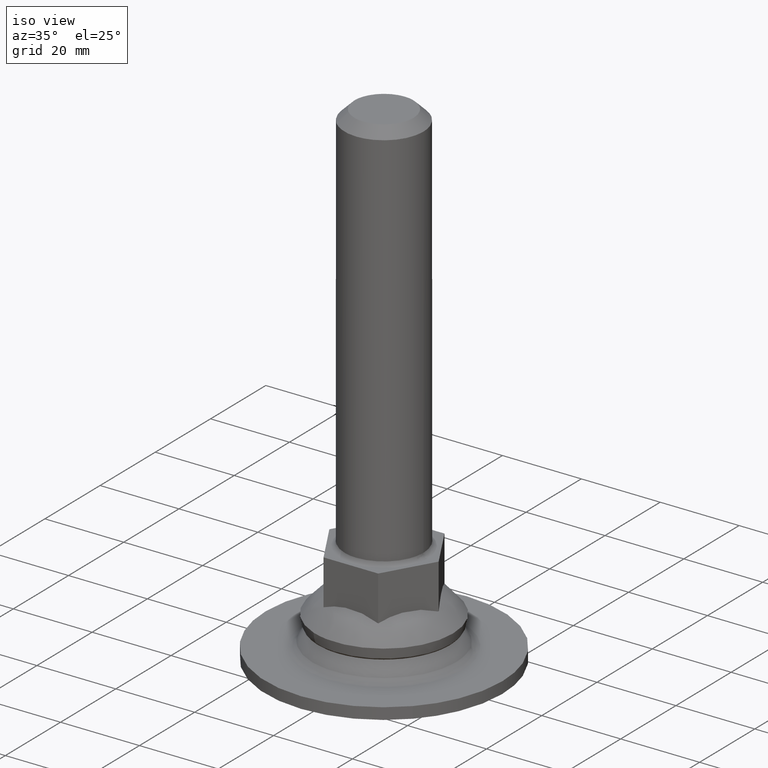
[diagram: clean part render]
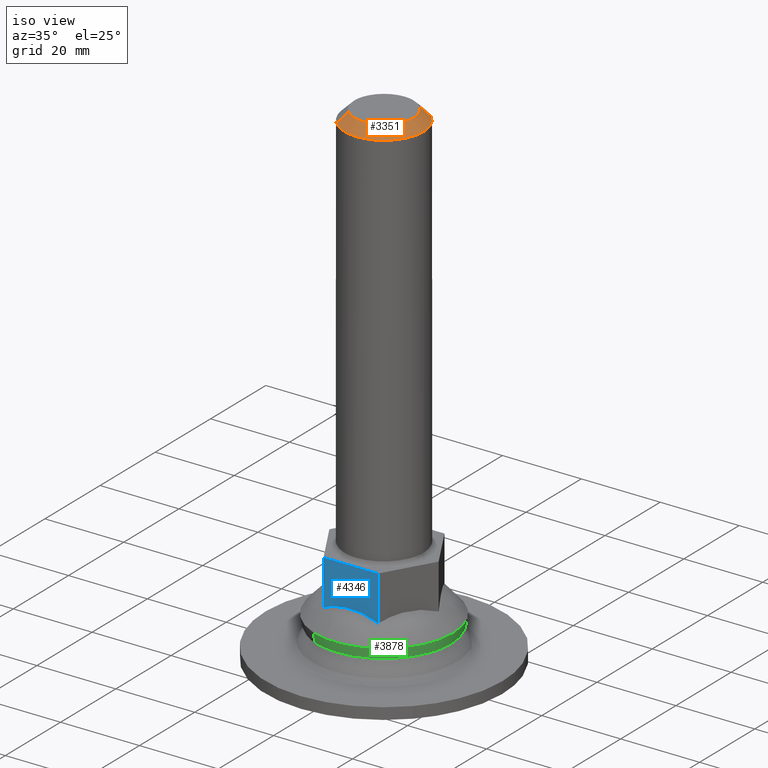
[diagram: same view with three faces highlighted in distinct colors, each labeled with its STEP entity id]
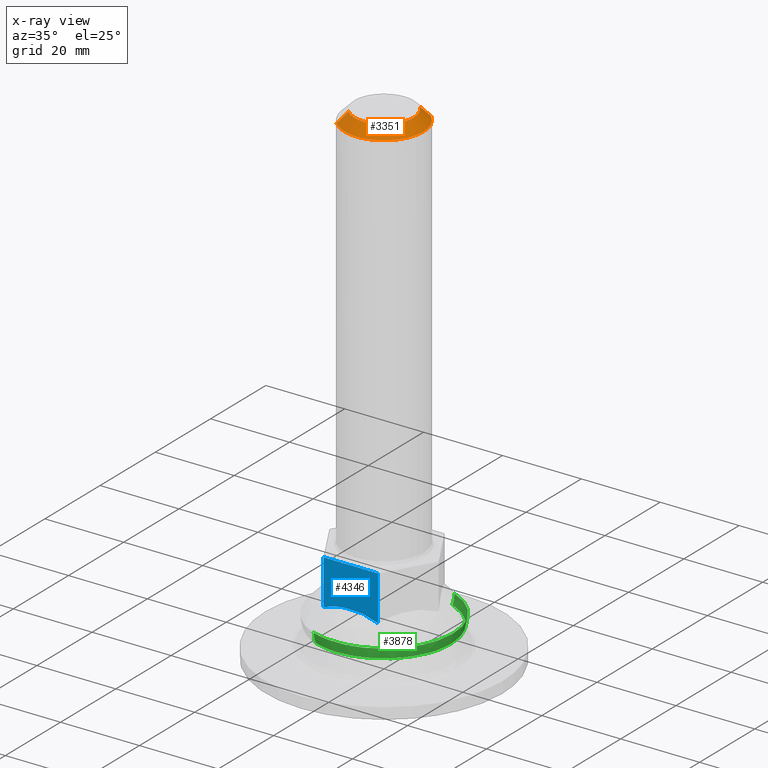
[diagram: x-ray of the same camera — body ghosted, the three highlighted faces saturated]
A machine part, iso view with three faces highlighted in distinct colors.
The next image is the same camera in x-ray (body ghosted, the three faces saturated) — at least one of them is partly hidden behind the body in this view.
Their STEP definitions:

[orange] entity #3351 — the highlighted face is a freeform B-spline surface patch.
#2986=CARTESIAN_POINT('',(-5.349378028334636,-5.256819147815845,126.000000159047300));
#2987=VERTEX_POINT('',#2986);
#2997=CARTESIAN_POINT('',(0.000001272572000,-7.499999999999892,126.0));
#2998=VERTEX_POINT('',#2997);
#2999=CARTESIAN_POINT('',(-5.349378028334636,-5.256819147815845,126.000000159047300));
#3000=CARTESIAN_POINT('',(-4.979804750623506,-5.633003415956612,126.000000148059100));
#3001=CARTESIAN_POINT('',(-4.136797157534064,-6.326771806794838,126.000000122995100));
#3002=CARTESIAN_POINT('',(-2.829826964678806,-6.993169783422770,126.000000084136200));
#3003=CARTESIAN_POINT('',(-1.426909774086751,-7.404691263051183,126.000000042424800));
#3004=CARTESIAN_POINT('',(-0.527356259449175,-7.500093194081496,126.000000015679210));
#3005=CARTESIAN_POINT('',(0.000001272572000,-7.499999999999892,126.0));
#3006=B_SPLINE_CURVE_WITH_KNOTS('',3,(#2999,#3000,#3001,#3002,#3003,#3004,#3005),.UNSPECIFIED.,.F.,.U.,(4,1,1,1,4),(0.000000032131767,1.582056928520330,3.257158372591816,4.373918465117593,5.955975361528592),.UNSPECIFIED.);
#3007=EDGE_CURVE('',#2987,#2998,#3006,.T.);
#3009=CARTESIAN_POINT('',(7.500000000000000,0.0,126.0));
#3010=VERTEX_POINT('',#3009);
#3011=CARTESIAN_POINT('',(0.000001272572000,-7.499999999999892,126.0));
#3012=CARTESIAN_POINT('',(0.797729298359782,-7.500483527849852,125.999999999999800));
#3013=CARTESIAN_POINT('',(2.178020435371256,-7.277554710305593,126.000000000000400));
#3014=CARTESIAN_POINT('',(3.802210070045309,-6.521473032689415,126.0));
#3015=CARTESIAN_POINT('',(4.944471772848146,-5.685015623023675,125.999999999999800));
#3016=CARTESIAN_POINT('',(5.761647019126409,-4.847514215843386,126.000000000001710));
#3017=CARTESIAN_POINT('',(6.511796082267917,-3.796227125966464,125.999999999998710));
#3018=CARTESIAN_POINT('',(7.059547378658469,-2.656286205104878,125.999999999999010));
#3019=CARTESIAN_POINT('',(7.420682475965768,-1.319197959938213,126.000000000003600));
#3020=CARTESIAN_POINT('',(7.500041010134382,-0.460193130097498,125.999999999997100));
#3021=CARTESIAN_POINT('',(7.500000000000000,0.0,126.0));
#3022=B_SPLINE_CURVE_WITH_KNOTS('',3,(#3011,#3012,#3013,#3014,#3015,#3016,#3017,#3018,#3019,#3020,#3021),.UNSPECIFIED.,.F.,.U.,(4,1,1,1,1,1,1,1,4),(0.000000121721241,2.393023865520807,4.141784922664193,5.338327191261848,6.626834193411376,7.639267183853509,9.203948523191802,10.400467048331979,11.781045654322019),.UNSPECIFIED.);
#3023=EDGE_CURVE('',#2998,#3010,#3022,.T.);
#3025=CARTESIAN_POINT('',(5.349378028334600,5.256819147815811,126.000000159047300));
#3026=VERTEX_POINT('',#3025);
#3027=CARTESIAN_POINT('',(7.500000000000000,0.0,126.0));
#3028=CARTESIAN_POINT('',(7.500007949914528,0.424736675308778,126.000000012850710));
#3029=CARTESIAN_POINT('',(7.409694925228116,1.486625569024249,126.000000044978410));
#3030=CARTESIAN_POINT('',(6.979654364455890,2.890301166358734,126.000000087447300));
#3031=CARTESIAN_POINT('',(6.245107952524767,4.222974976325006,126.000000127768200));
#3032=CARTESIAN_POINT('',(5.689660118294407,4.910634540409121,126.000000148573090));
#3033=CARTESIAN_POINT('',(5.349378028334600,5.256819147815811,126.000000159047300));
#3034=B_SPLINE_CURVE_WITH_KNOTS('',3,(#3027,#3028,#3029,#3030,#3031,#3032,#3033),.UNSPECIFIED.,.F.,.U.,(4,1,1,1,4),(0.000000033361732,1.274233847442855,3.185574834746614,4.368803959734233,5.825071935171669),.UNSPECIFIED.);
#3035=EDGE_CURVE('',#3010,#3026,#3034,.T.);
#3215=CARTESIAN_POINT('',(-7.132504638381588,-7.009092787297585,123.499999931375300));
#3216=VERTEX_POINT('',#3215);
#3224=CARTESIAN_POINT('',(-5.349378028334636,-5.256819147815845,126.000000159047300));
#3225=CARTESIAN_POINT('',(-7.132504638381588,-7.009092787297585,123.499999931375300));
#3226=QUASI_UNIFORM_CURVE('',1,(#3224,#3225),.UNSPECIFIED.,.F.,.U.);
#3227=EDGE_CURVE('',#2987,#3216,#3226,.T.);
#3232=CARTESIAN_POINT('',(7.132504638381590,7.009092787297587,123.499999931375300));
#3233=VERTEX_POINT('',#3232);
#3234=CARTESIAN_POINT('',(5.349378028334600,5.256819147815811,126.000000159047300));
#3235=CARTESIAN_POINT('',(7.132504638381590,7.009092787297587,123.499999931375300));
#3236=QUASI_UNIFORM_CURVE('',1,(#3234,#3235),.UNSPECIFIED.,.F.,.U.);
#3237=EDGE_CURVE('',#3026,#3233,#3236,.T.);
#3281=CARTESIAN_POINT('',(5.304800215584212,5.213012653230128,126.062500000000000));
#3282=CARTESIAN_POINT('',(10.517812868814339,-0.091787562354084,126.062500000000010));
#3283=CARTESIAN_POINT('',(5.213012653230128,-5.304800215584212,126.062500000000000));
#3284=CARTESIAN_POINT('',(-0.091787562354084,-10.517812868814339,126.062500000000010));
#3285=CARTESIAN_POINT('',(-5.304800215584212,-5.213012653230128,126.062500000000000));
#3286=CARTESIAN_POINT('',(7.178197098440793,7.053994642742755,123.435937499999990));
#3287=CARTESIAN_POINT('',(14.232191741183556,-0.124202455698038,123.435937499999990));
#3288=CARTESIAN_POINT('',(7.053994642742755,-7.178197098440793,123.435937499999990));
#3289=CARTESIAN_POINT('',(-0.124202455698038,-14.232191741183556,123.435937499999990));
#3290=CARTESIAN_POINT('',(-7.178197098440793,-7.053994642742755,123.435937499999990));
#3298=(BOUNDED_SURFACE()B_SPLINE_SURFACE(2,1,((#3281,#3286),(#3282,#3287),(#3283,#3288),(#3284,#3289),(#3285,#3290)),.UNSPECIFIED.,.F.,.F.,.U.)B_SPLINE_SURFACE_WITH_KNOTS((3,2,3),(2,2),(0.0,16.674684720281999,33.349369440563990),(0.0,3.714520309920652),.UNSPECIFIED.)GEOMETRIC_REPRESENTATION_ITEM()RATIONAL_B_SPLINE_SURFACE(((1.0,1.0),(0.707106781186548,0.707106781186548),(1.0,1.0),(0.707106781186548,0.707106781186548),(1.0,1.0)))REPRESENTATION_ITEM('')SURFACE());
#3299=CARTESIAN_POINT('',(-0.000001116382157,-9.999999999999940,123.500000000000000));
#3300=VERTEX_POINT('',#3299);
#3301=CARTESIAN_POINT('',(-0.000001116382157,-9.999999999999940,123.500000000000000));
#3302=CARTESIAN_POINT('',(-1.034104233955298,-10.000587130528340,123.499999990050600));
#3303=CARTESIAN_POINT('',(-2.564083134001908,-9.760422532306476,123.499999975329900));
#3304=CARTESIAN_POINT('',(-4.370948342124586,-9.028787908842698,123.499999957945510));
#3305=CARTESIAN_POINT('',(-5.772597154616108,-8.224178763481008,123.499999944459200));
#3306=CARTESIAN_POINT('',(-6.639743468771343,-7.510685223549811,123.499999936117110));
#3307=CARTESIAN_POINT('',(-7.132504638381588,-7.009092787297585,123.499999931375300));
#3308=B_SPLINE_CURVE_WITH_KNOTS('',3,(#3301,#3302,#3303,#3304,#3305,#3306,#3307),.UNSPECIFIED.,.F.,.U.,(4,1,1,1,4),(0.000000025246525,3.102074031920558,4.591049882436860,5.831889011853403,7.941298003192223),.UNSPECIFIED.);
#3309=EDGE_CURVE('',#3300,#3216,#3308,.T.);
#3310=ORIENTED_EDGE('',*,*,#3309,.F.);
#3311=CARTESIAN_POINT('',(10.0,0.0,123.500000000000000));
#3312=VERTEX_POINT('',#3311);
#3313=CARTESIAN_POINT('',(10.0,0.0,123.500000000000000));
#3314=CARTESIAN_POINT('',(10.000121688835470,-0.777220201414514,123.500000000000000));
#3315=CARTESIAN_POINT('',(9.813167069962011,-2.372532971525058,123.500000000000200));
#3316=CARTESIAN_POINT('',(9.095197127377910,-4.304134899934490,123.499999999999900));
#3317=CARTESIAN_POINT('',(8.115556578473184,-5.915757752217230,123.500000000000000));
#3318=CARTESIAN_POINT('',(7.076595985422238,-7.135286468560522,123.499999999999700));
#3319=CARTESIAN_POINT('',(5.751020852721978,-8.236842801259432,123.500000000000100));
#3320=CARTESIAN_POINT('',(4.367573590757957,-9.043095766470202,123.500000000000000));
#3321=CARTESIAN_POINT('',(2.454149533465511,-9.781333823020106,123.500000000000000));
#3322=CARTESIAN_POINT('',(0.981805313624165,-10.000435081316080,123.500000000000100));
#3323=CARTESIAN_POINT('',(-0.000001116382157,-9.999999999999940,123.500000000000000));
#3324=B_SPLINE_CURVE_WITH_KNOTS('',3,(#3313,#3314,#3315,#3316,#3317,#3318,#3319,#3320,#3321,#3322,#3323),.UNSPECIFIED.,.F.,.U.,(4,1,1,1,1,1,1,1,4),(0.000000080921248,2.331662886608523,4.786059589965058,6.135962979370811,7.976727525495474,9.572094227242719,11.290163700589920,12.762812535857501,15.708062457968341),.UNSPECIFIED.);
#3325=EDGE_CURVE('',#3312,#3300,#3324,.T.);
#3326=ORIENTED_EDGE('',*,*,#3325,.F.);
#3327=CARTESIAN_POINT('',(7.220018122038374,6.918912045566668,123.500000000000000));
#3328=VERTEX_POINT('',#3327);
#3329=CARTESIAN_POINT('',(7.220018122038374,6.918912045566668,123.500000000000000));
#3330=CARTESIAN_POINT('',(7.853618404025306,6.258250960764366,123.500000000000000));
#3331=CARTESIAN_POINT('',(8.724974536482915,5.054086833258520,123.500000000000200));
#3332=CARTESIAN_POINT('',(9.466086299666623,3.329571701695731,123.500000000000000));
#3333=CARTESIAN_POINT('',(9.890505905537443,1.751035976046665,123.500000000000100));
#3334=CARTESIAN_POINT('',(10.000097002277110,0.676562366675440,123.499999999999800));
#3335=CARTESIAN_POINT('',(10.0,0.0,123.500000000000000));
#3336=B_SPLINE_CURVE_WITH_KNOTS('',3,(#3329,#3330,#3331,#3332,#3333,#3334,#3335),.UNSPECIFIED.,.F.,.U.,(4,1,1,1,4),(0.000000025336252,2.746028996677348,4.417504244758540,5.611429784323361,7.641096888134920),.UNSPECIFIED.);
#3337=EDGE_CURVE('',#3328,#3312,#3336,.T.);
#3338=ORIENTED_EDGE('',*,*,#3337,.F.);
#3339=CARTESIAN_POINT('',(7.132504638381590,7.009092787297587,123.499999931375300));
#3340=CARTESIAN_POINT('',(7.220018122038374,6.918912045566668,123.500000000000000));
#3341=QUASI_UNIFORM_CURVE('',1,(#3339,#3340),.UNSPECIFIED.,.F.,.U.);
#3342=EDGE_CURVE('',#3233,#3328,#3341,.T.);
#3343=ORIENTED_EDGE('',*,*,#3342,.F.);
#3344=ORIENTED_EDGE('',*,*,#3237,.F.);
#3345=ORIENTED_EDGE('',*,*,#3035,.F.);
#3346=ORIENTED_EDGE('',*,*,#3023,.F.);
#3347=ORIENTED_EDGE('',*,*,#3007,.F.);
#3348=ORIENTED_EDGE('',*,*,#3227,.T.);
#3349=EDGE_LOOP('',(#3310,#3326,#3338,#3343,#3344,#3345,#3346,#3347,#3348));
#3350=FACE_OUTER_BOUND('',#3349,.T.);
#3351=ADVANCED_FACE('',(#3350),#3298,.T.);

[blue] entity #4346 — the highlighted face is a freeform B-spline surface patch.
#4184=CARTESIAN_POINT('',(6.928203230275470,-12.0,14.570158679988181));
#4185=VERTEX_POINT('',#4184);
#4196=CARTESIAN_POINT('',(-6.928203230275470,-12.0,14.570158679988181));
#4197=VERTEX_POINT('',#4196);
#4198=CARTESIAN_POINT('',(6.928203230275470,-12.0,14.570158679988181));
#4199=CARTESIAN_POINT('',(6.076492331510504,-12.000000000000020,14.937379455673170));
#4200=CARTESIAN_POINT('',(4.067848648348435,-11.999999999999950,15.619954177666580));
#4201=CARTESIAN_POINT('',(1.448377716827622,-12.000000000000041,16.005901902151809));
#4202=CARTESIAN_POINT('',(-1.336955598195046,-12.0,16.005856240024990));
#4203=CARTESIAN_POINT('',(-3.957587912257986,-12.0,15.645248327095960));
#4204=CARTESIAN_POINT('',(-5.974299768641528,-12.000000000000011,14.981502659978499));
#4205=CARTESIAN_POINT('',(-6.928203230275470,-12.0,14.570158679988181));
#4206=B_SPLINE_CURVE_WITH_KNOTS('',3,(#4198,#4199,#4200,#4201,#4202,#4203,#4204,#4205),.UNSPECIFIED.,.F.,.U.,(4,1,1,1,1,4),(0.000000022260078,2.782531710368431,6.344190845837394,7.902401627566672,11.130152316390120,14.246592451143650),.UNSPECIFIED.);
#4207=EDGE_CURVE('',#4185,#4197,#4206,.T.);
#4258=CARTESIAN_POINT('',(-6.928203230275470,-12.0,26.0));
#4259=VERTEX_POINT('',#4258);
#4265=CARTESIAN_POINT('',(6.928203230275470,-12.0,26.0));
#4266=VERTEX_POINT('',#4265);
#4267=CARTESIAN_POINT('',(-6.928203230275470,-12.0,26.0));
#4268=CARTESIAN_POINT('',(6.928203230275470,-12.0,26.0));
#4269=QUASI_UNIFORM_CURVE('',1,(#4267,#4268),.UNSPECIFIED.,.F.,.U.);
#4270=EDGE_CURVE('',#4259,#4266,#4269,.T.);
#4323=CARTESIAN_POINT('',(6.928203230275470,-12.0,26.0));
#4324=CARTESIAN_POINT('',(6.928203230275470,-12.0,14.570158679988181));
#4325=QUASI_UNIFORM_CURVE('',1,(#4323,#4324),.UNSPECIFIED.,.F.,.U.);
#4326=EDGE_CURVE('',#4266,#4185,#4325,.T.);
#4331=CARTESIAN_POINT('',(-7.620330706123587,-12.0,13.999238128206841));
#4332=CARTESIAN_POINT('',(-7.620330706123587,-12.0,26.570920858353581));
#4333=CARTESIAN_POINT('',(7.620331077781369,-12.0,13.999238128206841));
#4334=CARTESIAN_POINT('',(7.620331077781369,-12.0,26.570920858353581));
#4335=B_SPLINE_SURFACE_WITH_KNOTS('',1,1,((#4331,#4333),(#4332,#4334)),.UNSPECIFIED.,.F.,.F.,.U.,(2,2),(2,2),(0.0,12.571682730146740),(0.0,15.240661783904960),.UNSPECIFIED.);
#4336=ORIENTED_EDGE('',*,*,#4207,.F.);
#4337=ORIENTED_EDGE('',*,*,#4326,.F.);
#4338=ORIENTED_EDGE('',*,*,#4270,.F.);
#4339=CARTESIAN_POINT('',(-6.928203230275470,-12.0,26.0));
#4340=CARTESIAN_POINT('',(-6.928203230275470,-12.0,14.570158679988181));
#4341=QUASI_UNIFORM_CURVE('',1,(#4339,#4340),.UNSPECIFIED.,.F.,.U.);
#4342=EDGE_CURVE('',#4259,#4197,#4341,.T.);
#4343=ORIENTED_EDGE('',*,*,#4342,.T.);
#4344=EDGE_LOOP('',(#4336,#4337,#4338,#4343));
#4345=FACE_OUTER_BOUND('',#4344,.T.);
#4346=ADVANCED_FACE('',(#4345),#4335,.F.);

[green] entity #3878 — the highlighted face is a freeform B-spline surface patch.
#3645=CARTESIAN_POINT('',(15.806200260110710,-6.258117395644629,8.000000000152721));
#3646=VERTEX_POINT('',#3645);
#3647=CARTESIAN_POINT('',(-6.258117398544525,-15.806200259649451,8.000000001560522));
#3648=VERTEX_POINT('',#3647);
#3649=CARTESIAN_POINT('',(15.806200260110710,-6.258117395644629,8.000000000152721));
#3650=CARTESIAN_POINT('',(15.422308068260801,-7.228012843863470,8.000000000203572));
#3651=CARTESIAN_POINT('',(14.522476650929960,-9.003279125394009,8.000000000306454));
#3652=CARTESIAN_POINT('',(12.574729673280070,-11.598449674391951,8.000000000488205));
#3653=CARTESIAN_POINT('',(10.418082125722430,-13.542550557174430,8.000000000658941));
#3654=CARTESIAN_POINT('',(8.088914596375675,-15.008391297333009,8.000000000822597));
#3655=CARTESIAN_POINT('',(5.649218627626357,-16.127172977897491,8.000000000980306));
#3656=CARTESIAN_POINT('',(2.909087191563699,-16.841485170642230,8.000000001139695));
#3657=CARTESIAN_POINT('',(0.267194812662673,-17.045283393443079,8.000000001277423));
#3658=CARTESIAN_POINT('',(-2.723639630162412,-16.890470262546170,8.000000001420780));
#3659=CARTESIAN_POINT('',(-4.835794213965853,-16.369902699664781,8.000000001508413));
#3660=CARTESIAN_POINT('',(-6.258117398544525,-15.806200259649451,8.000000001560522));
#3661=B_SPLINE_CURVE_WITH_KNOTS('',3,(#3649,#3650,#3651,#3652,#3653,#3654,#3655,#3656,#3657,#3658,#3659,#3660),.UNSPECIFIED.,.F.,.U.,(4,1,1,1,1,1,1,1,1,4),(0.000000079767922,3.129299696434863,5.945717609814597,9.700932569937539,11.787164259022481,14.186231746349719,17.732838676941750,20.236306968040509,22.113912099997808,26.703579447800021),.UNSPECIFIED.);
#3662=EDGE_CURVE('',#3646,#3648,#3661,.T.);
#3741=CARTESIAN_POINT('',(17.0,0.0,8.0));
#3742=VERTEX_POINT('',#3741);
#3743=CARTESIAN_POINT('',(17.0,0.0,8.0));
#3744=CARTESIAN_POINT('',(17.000145737283312,-1.134910213041431,8.000000000018373));
#3745=CARTESIAN_POINT('',(16.785225180084709,-3.271123245258456,8.000000000062224));
#3746=CARTESIAN_POINT('',(16.174921573861550,-5.327083593813284,8.000000000121755));
#3747=CARTESIAN_POINT('',(15.806200260110710,-6.258117395644629,8.000000000152721));
#3748=B_SPLINE_CURVE_WITH_KNOTS('',3,(#3743,#3744,#3745,#3746,#3747),.UNSPECIFIED.,.F.,.U.,(4,1,4),(4.414232E-009,3.404703490626755,6.408858278750034),.UNSPECIFIED.);
#3749=EDGE_CURVE('',#3742,#3646,#3748,.T.);
#3755=CARTESIAN_POINT('',(6.258117398544526,15.806200259649440,8.000000001560522));
#3756=VERTEX_POINT('',#3755);
#3773=CARTESIAN_POINT('',(6.258117398544526,15.806200259649440,8.000000001560522));
#3774=CARTESIAN_POINT('',(7.240945461125724,15.417187542168881,8.000000001489161));
#3775=CARTESIAN_POINT('',(8.897034772077767,14.575222239122210,8.000000001356245));
#3776=CARTESIAN_POINT('',(10.861241356441180,13.132558576295940,8.000000001168692));
#3777=CARTESIAN_POINT('',(12.441835006050010,11.646098511417771,8.000000000995712));
#3778=CARTESIAN_POINT('',(13.832612474905980,9.977528682778619,8.000000000819265));
#3779=CARTESIAN_POINT('',(14.949161147832770,8.176320968919249,8.000000000646262));
#3780=CARTESIAN_POINT('',(15.869869731534010,6.212182594779396,8.000000000471498));
#3781=CARTESIAN_POINT('',(16.729367834179509,3.593722036342613,8.000000000255092));
#3782=CARTESIAN_POINT('',(17.000319265011768,1.374148051377746,8.000000000092692));
#3783=CARTESIAN_POINT('',(17.0,0.0,8.0));
#3784=B_SPLINE_CURVE_WITH_KNOTS('',3,(#3773,#3774,#3775,#3776,#3777,#3778,#3779,#3780,#3781,#3782,#3783),.UNSPECIFIED.,.F.,.U.,(4,1,1,1,1,1,1,1,4),(0.000000041620154,3.171041826410423,5.549349776222133,7.293431225738331,9.671758448691248,12.050013612705669,13.635533244315230,16.172396199379239,20.294762093305881),.UNSPECIFIED.);
#3785=EDGE_CURVE('',#3756,#3742,#3784,.T.);
#3790=CARTESIAN_POINT('',(5.986866945146249,16.450019839845982,10.627247101888221));
#3791=CARTESIAN_POINT('',(6.212969554011375,16.360499484134049,10.627247101888221));
#3792=CARTESIAN_POINT('',(22.711651451928972,9.828209212504524,10.627247101888218));
#3793=CARTESIAN_POINT('',(16.269930332216752,-6.441721119712226,10.627247101888223));
#3794=CARTESIAN_POINT('',(9.828209212504524,-22.711651451928972,10.627247101888218));
#3795=CARTESIAN_POINT('',(-6.670472686780794,-16.179361179757930,10.627247101888221));
#3796=CARTESIAN_POINT('',(-6.896575296982053,-16.089840823516983,10.627247101888221));
#3797=CARTESIAN_POINT('',(5.996463749713123,16.476388828328723,9.194675292384705));
#3798=CARTESIAN_POINT('',(6.222928795654139,16.386724973627015,9.194675292384703));
#3799=CARTESIAN_POINT('',(22.748057686170046,9.843963596879345,9.194675292384703));
#3800=CARTESIAN_POINT('',(16.296010641524699,-6.452047044645351,9.194675292384705));
#3801=CARTESIAN_POINT('',(9.843963596879345,-22.748057686170046,9.194675292384703));
#3802=CARTESIAN_POINT('',(-6.681165295006471,-16.205296308880005,9.194675292384705));
#3803=CARTESIAN_POINT('',(-6.907630342285761,-16.115632453648434,9.194675292384705));
#3804=CARTESIAN_POINT('',(5.799099453623182,15.934094066126111,7.883083658873164));
#3805=CARTESIAN_POINT('',(6.018110754115763,15.847381358017875,7.883083658873164));
#3806=CARTESIAN_POINT('',(21.999340678940712,9.519964815743370,7.883083658873161));
#3807=CARTESIAN_POINT('',(15.759652747342047,-6.239687931598676,7.883083658873163));
#3808=CARTESIAN_POINT('',(9.519964815743370,-21.999340678940712,7.883083658873161));
#3809=CARTESIAN_POINT('',(-6.461265110406408,-15.671924136141689,7.883083658873163));
#3810=CARTESIAN_POINT('',(-6.680276412193218,-15.585211427521036,7.883083658873164));
#3818=(BOUNDED_SURFACE()B_SPLINE_SURFACE(2,2,((#3790,#3797,#3804),(#3791,#3798,#3805),(#3792,#3799,#3806),(#3793,#3800,#3807),(#3794,#3801,#3808),(#3795,#3802,#3809),(#3796,#3803,#3810)),.UNSPECIFIED.,.F.,.F.,.U.)B_SPLINE_SURFACE_WITH_KNOTS((3,1,2,1,3),(3,3),(0.0,0.579857710303961,29.572743225283759,58.565628740263563,59.145486454054833),(0.0,2.831743235588425),.UNSPECIFIED.)GEOMETRIC_REPRESENTATION_ITEM()RATIONAL_B_SPLINE_SURFACE(((0.959198979080621,0.936976675544501,0.959744767161722),(0.953645188258094,0.931551552525137,0.954187816209856),(0.670401856311320,0.654870278539617,0.670783317666787),(0.948091397435568,0.926126429505773,0.948630865257990),(0.670401856311320,0.654870278539617,0.670783317666787),(0.953645188291495,0.931551552557764,0.954187816243276),(0.959198979147423,0.936976675609755,0.959744767228562)))REPRESENTATION_ITEM('')SURFACE());
#3819=ORIENTED_EDGE('',*,*,#3785,.F.);
#3820=CARTESIAN_POINT('',(6.442179672005633,16.271088503035049,10.499999999995280));
#3821=VERTEX_POINT('',#3820);
#3822=CARTESIAN_POINT('',(6.442179672005633,16.271088503035049,10.499999999995280));
#3823=CARTESIAN_POINT('',(6.442427047361780,16.271713299324400,9.644509903076326));
#3824=CARTESIAN_POINT('',(6.379365208049955,16.112437271976521,8.789486741471967));
#3825=CARTESIAN_POINT('',(6.258117398544526,15.806200259649440,8.000000001560522));
#3826=B_SPLINE_CURVE_WITH_KNOTS('',3,(#3822,#3823,#3824,#3825),.UNSPECIFIED.,.F.,.U.,(4,4),(9.224247E-009,2.566158549751708),.UNSPECIFIED.);
#3827=EDGE_CURVE('',#3821,#3756,#3826,.T.);
#3828=ORIENTED_EDGE('',*,*,#3827,.F.);
#3829=CARTESIAN_POINT('',(17.500000000000000,0.0,10.500000000000000));
#3830=VERTEX_POINT('',#3829);
#3831=CARTESIAN_POINT('',(6.442179672005633,16.271088503035049,10.499999999995280));
#3832=CARTESIAN_POINT('',(7.403340600920035,15.890662669724080,10.499999999995500));
#3833=CARTESIAN_POINT('',(8.818583929590631,15.179371020373710,10.499999999995790));
#3834=CARTESIAN_POINT('',(10.795339610360010,13.824615804324770,10.499999999996369));
#3835=CARTESIAN_POINT('',(12.356955415463240,12.462107385787601,10.499999999996771));
#3836=CARTESIAN_POINT('',(13.871246741207610,10.745295327909529,10.499999999997460));
#3837=CARTESIAN_POINT('',(15.342359969616160,8.580878732907170,10.499999999997900));
#3838=CARTESIAN_POINT('',(16.582848970730520,5.902173057722604,10.499999999998820));
#3839=CARTESIAN_POINT('',(17.344427515629040,2.883468634726826,10.499999999999231));
#3840=CARTESIAN_POINT('',(17.500045504905131,0.924881292350239,10.499999999999980));
#3841=CARTESIAN_POINT('',(17.500000000000000,0.0,10.500000000000000));
#3842=B_SPLINE_CURVE_WITH_KNOTS('',3,(#3831,#3832,#3833,#3834,#3835,#3836,#3837,#3838,#3839,#3840,#3841),.UNSPECIFIED.,.F.,.U.,(4,1,1,1,1,1,1,1,4),(0.000000038280557,3.101106259952843,4.733264809486622,7.181511941189427,9.303322801199590,11.588342436059460,15.015880778531979,18.117010735558889,20.891666863327490),.UNSPECIFIED.);
#3843=EDGE_CURVE('',#3821,#3830,#3842,.T.);
#3844=ORIENTED_EDGE('',*,*,#3843,.T.);
#3845=CARTESIAN_POINT('',(-6.442179672005638,-16.271088503035049,10.499999999995280));
#3846=VERTEX_POINT('',#3845);
#3847=CARTESIAN_POINT('',(17.500000000000000,0.0,10.500000000000000));
#3848=CARTESIAN_POINT('',(17.500307947142051,-1.375903476028547,10.499999999999879));
#3849=CARTESIAN_POINT('',(17.247405879530401,-3.506131488879144,10.499999999999670));
#3850=CARTESIAN_POINT('',(16.365138271542769,-6.352440386359571,10.499999999999231));
#3851=CARTESIAN_POINT('',(15.139903573041650,-8.972631477154446,10.499999999998860));
#3852=CARTESIAN_POINT('',(13.427281935533751,-11.371061642094229,10.499999999998410));
#3853=CARTESIAN_POINT('',(11.578085927556570,-13.170632252581290,10.499999999997980));
#3854=CARTESIAN_POINT('',(9.685467653455644,-14.644443321121770,10.499999999997661));
#3855=CARTESIAN_POINT('',(7.640315626724403,-15.828002672030690,10.499999999997179));
#3856=CARTESIAN_POINT('',(5.355084969956888,-16.700689824730102,10.499999999996840));
#3857=CARTESIAN_POINT('',(3.245713853019762,-17.240931461996350,10.499999999996490));
#3858=CARTESIAN_POINT('',(1.348143123613566,-17.487035020237830,10.499999999996239));
#3859=CARTESIAN_POINT('',(-1.094822757801169,-17.523398709589490,10.499999999995740));
#3860=CARTESIAN_POINT('',(-3.617174523103111,-17.213843958939119,10.499999999996019));
#3861=CARTESIAN_POINT('',(-5.575601866158744,-16.614230890256970,10.499999999994991));
#3862=CARTESIAN_POINT('',(-6.442179672005638,-16.271088503035049,10.499999999995280));
#3863=B_SPLINE_CURVE_WITH_KNOTS('',3,(#3847,#3848,#3849,#3850,#3851,#3852,#3853,#3854,#3855,#3856,#3857,#3858,#3859,#3860,#3861,#3862),.UNSPECIFIED.,.F.,.U.,(4,1,1,1,1,1,1,1,1,1,1,1,1,4),(0.000000117842383,4.127617327099145,6.391188767581379,8.921043033117655,12.782419899867071,15.179095145841940,16.643762757267631,19.972436276199218,22.236016812229131,23.966974057011299,26.496823121112911,27.961487889510980,31.290219347469019,34.086362508616652),.UNSPECIFIED.);
#3864=EDGE_CURVE('',#3830,#3846,#3863,.T.);
#3865=ORIENTED_EDGE('',*,*,#3864,.T.);
#3866=CARTESIAN_POINT('',(-6.442179672005638,-16.271088503035049,10.499999999995280));
#3867=CARTESIAN_POINT('',(-6.442185525009809,-16.271103285004489,10.152500778237350));
#3868=CARTESIAN_POINT('',(-6.416875631602172,-16.207177788785959,9.297121236401086));
#3869=CARTESIAN_POINT('',(-6.330068558769616,-15.987928147606970,8.468779442030431));
#3870=CARTESIAN_POINT('',(-6.258117398544525,-15.806200259649451,8.000000001560522));
#3871=B_SPLINE_CURVE_WITH_KNOTS('',3,(#3866,#3867,#3868,#3869,#3870),.UNSPECIFIED.,.F.,.U.,(4,1,4),(9.224134E-009,1.042503697118536,2.566158549751707),.UNSPECIFIED.);
#3872=EDGE_CURVE('',#3846,#3648,#3871,.T.);
#3873=ORIENTED_EDGE('',*,*,#3872,.T.);
#3874=ORIENTED_EDGE('',*,*,#3662,.F.);
#3875=ORIENTED_EDGE('',*,*,#3749,.F.);
#3876=EDGE_LOOP('',(#3819,#3828,#3844,#3865,#3873,#3874,#3875));
#3877=FACE_OUTER_BOUND('',#3876,.T.);
#3878=ADVANCED_FACE('',(#3877),#3818,.T.);